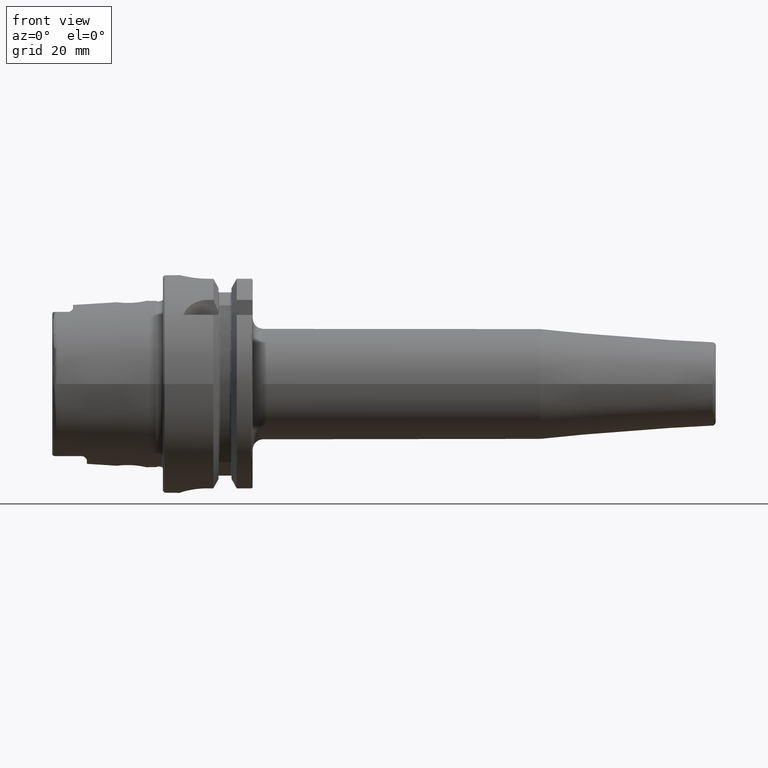
[diagram: clean part render]
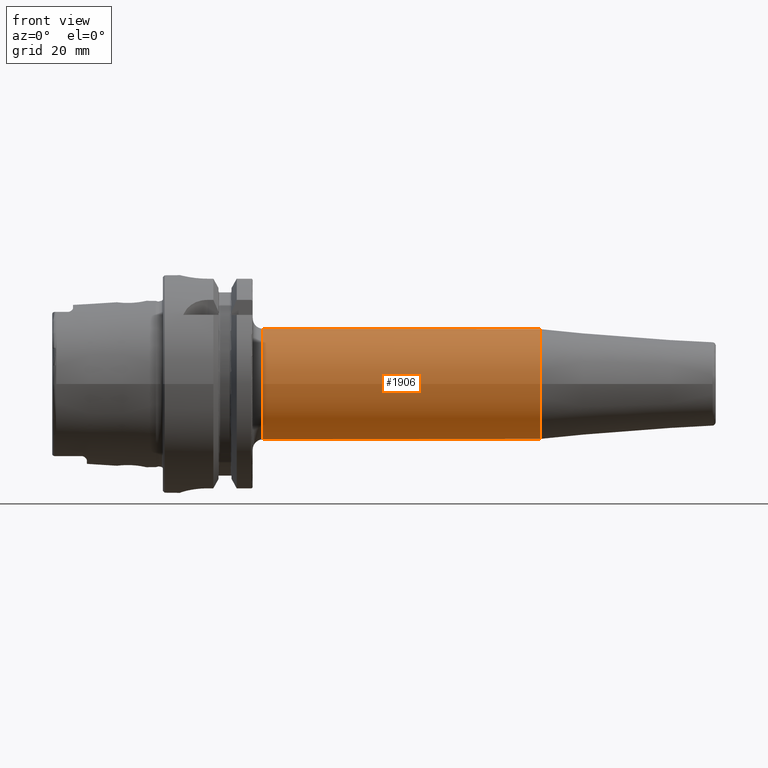
[diagram: same view with one face highlighted and labeled with its STEP entity id]
A machine part, front view. The second image highlights one B-rep face of the part: STEP entity #1906.
In plain terms, the highlighted cylindrical surface (bore or boss wall) has radius 16 mm, axis along (1, 0, 0).
Its self-contained STEP definition (entity closure, byte-faithful):
#192=FACE_OUTER_BOUND('',#307,.T.);
#307=EDGE_LOOP('',(#1279,#1280,#1281,#1282,#1283));
#428=LINE('',#2898,#532);
#532=VECTOR('',#2319,16.);
#641=CIRCLE('',#2049,16.);
#642=CIRCLE('',#2051,16.);
#645=CIRCLE('',#2054,16.);
#761=VERTEX_POINT('',#2886);
#762=VERTEX_POINT('',#2890);
#763=VERTEX_POINT('',#2891);
#962=EDGE_CURVE('',#761,#761,#641,.T.);
#963=EDGE_CURVE('',#762,#763,#642,.T.);
#966=EDGE_CURVE('',#763,#762,#645,.T.);
#967=EDGE_CURVE('',#761,#762,#428,.T.);
#1279=ORIENTED_EDGE('',*,*,#962,.F.);
#1280=ORIENTED_EDGE('',*,*,#967,.T.);
#1281=ORIENTED_EDGE('',*,*,#966,.F.);
#1282=ORIENTED_EDGE('',*,*,#963,.F.);
#1283=ORIENTED_EDGE('',*,*,#967,.F.);
#1869=CYLINDRICAL_SURFACE('',#2055,16.);
#1906=ADVANCED_FACE('',(#192),#1869,.T.);
#2049=AXIS2_PLACEMENT_3D('',#2888,#2305,#2306);
#2051=AXIS2_PLACEMENT_3D('',#2892,#2309,#2310);
#2054=AXIS2_PLACEMENT_3D('',#2896,#2315,#2316);
#2055=AXIS2_PLACEMENT_3D('',#2897,#2317,#2318);
#2305=DIRECTION('center_axis',(1.,0.,0.));
#2306=DIRECTION('ref_axis',(0.,0.,-1.));
#2309=DIRECTION('center_axis',(-1.,0.,0.));
#2310=DIRECTION('ref_axis',(0.,-1.,-1.22464679914735E-16));
#2315=DIRECTION('center_axis',(-1.,0.,0.));
#2316=DIRECTION('ref_axis',(0.,-1.,-1.22464679914735E-16));
#2317=DIRECTION('center_axis',(1.,0.,0.));
#2318=DIRECTION('ref_axis',(0.,1.,0.));
#2319=DIRECTION('',(-1.,0.,0.));
#2886=CARTESIAN_POINT('',(109.175181055301,-16.,-1.95943487863577E-15));
#2888=CARTESIAN_POINT('Origin',(109.175181055301,0.,0.));
#2890=CARTESIAN_POINT('',(29.,-16.,-1.95943487863577E-15));
#2891=CARTESIAN_POINT('',(29.,-1.95943487863577E-15,-16.));
#2892=CARTESIAN_POINT('Origin',(29.,0.,0.));
#2896=CARTESIAN_POINT('Origin',(29.,0.,0.));
#2897=CARTESIAN_POINT('Origin',(67.5875905276506,0.,0.));
#2898=CARTESIAN_POINT('',(67.5875905276506,-16.,-1.95943487863577E-15));